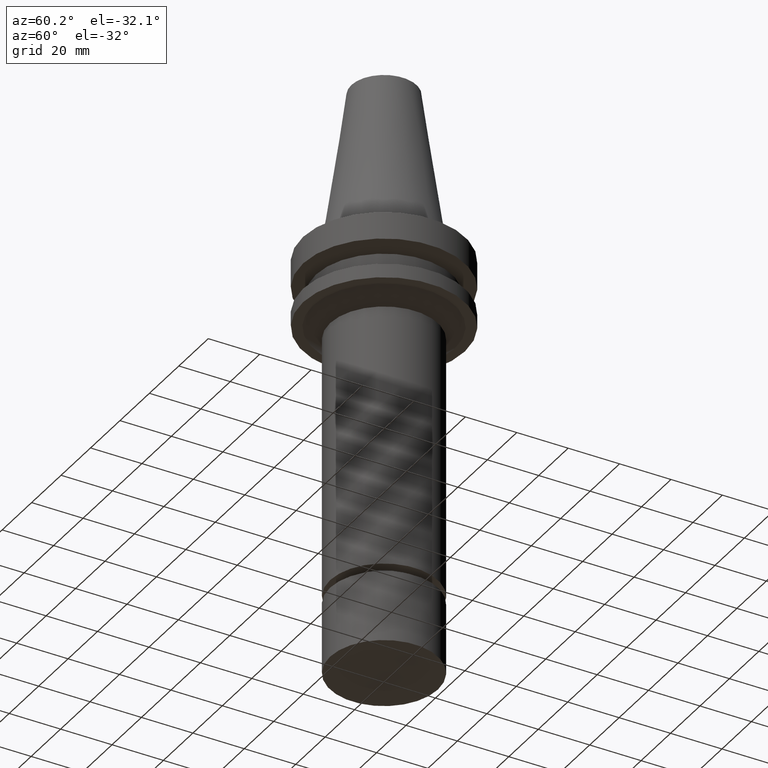
[diagram: clean part render]
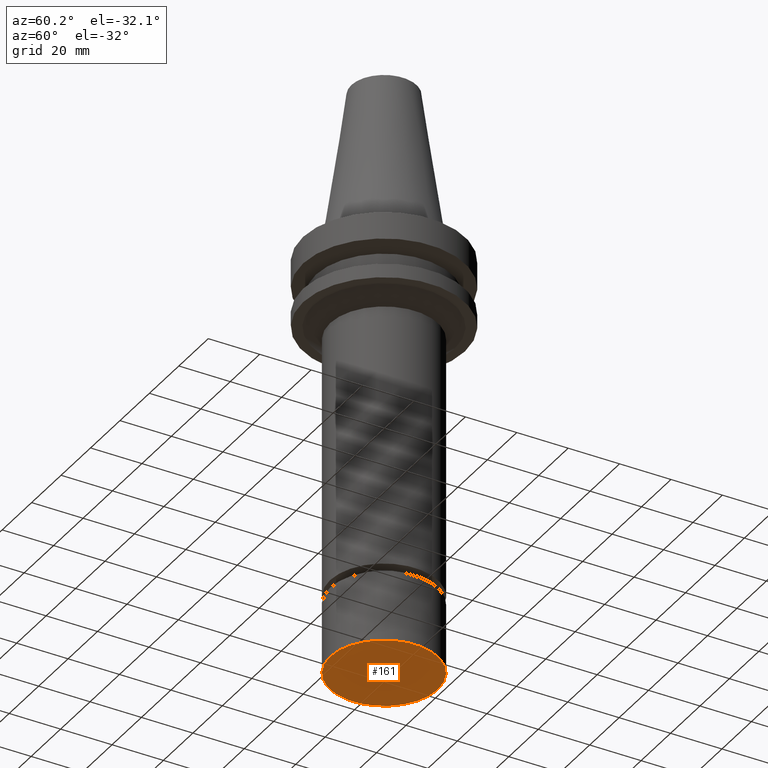
[diagram: same view with one face highlighted and labeled with its STEP entity id]
A machine part, auxiliary view. The second image highlights one B-rep face of the part: STEP entity #161.
In plain terms, the highlighted planar face has unit normal (0, 0, -1).
Its self-contained STEP definition (entity closure, byte-faithful):
#107=EDGE_CURVE('Unnamed[1]',#250,#250,#251,.T.);
#161=ADVANCED_FACE('Unnamed[1]',(#333),#334,.T.);
#250=VERTEX_POINT('',#438);
#251=CIRCLE('',#439,20.9999999999999);
#333=FACE_OUTER_BOUND('',#542,.T.);
#334=PLANE('',#543);
#438=CARTESIAN_POINT('',(1.01033360929657E-014,21.0,-165.0));
#439=AXIS2_PLACEMENT_3D('',#632,#633,#634);
#542=EDGE_LOOP('',(#726));
#543=AXIS2_PLACEMENT_3D('',#727,#728,#729);
#632=CARTESIAN_POINT('',(1.01033360929657E-014,7.89678842081034E-014,-165.0));
#633=DIRECTION('',(6.12323399573677E-017,7.77674569767413E-018,-1.0));
#634=DIRECTION('',(-5.30334106709101E-033,1.0,7.77674569767413E-018));
#726=ORIENTED_EDGE('',*,*,#107,.T.);
#727=CARTESIAN_POINT('',(1.01033360929657E-014,10.5,-165.0));
#728=DIRECTION('',(6.12323399573677E-017,1.22464679914735E-016,-1.0));
#729=DIRECTION('',(-1.23259516440783E-032,1.0,1.22464679914735E-016));